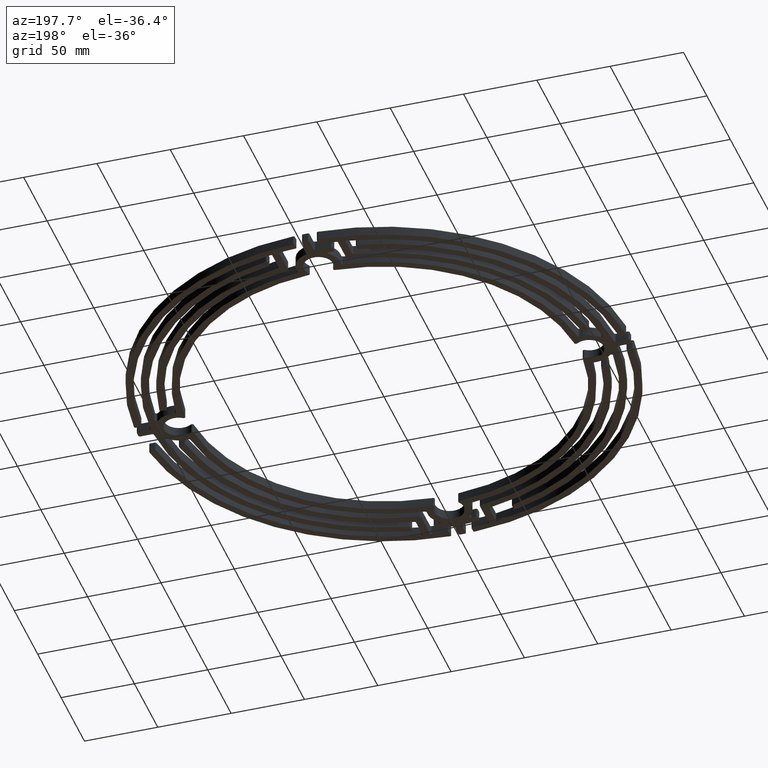
[diagram: clean part render]
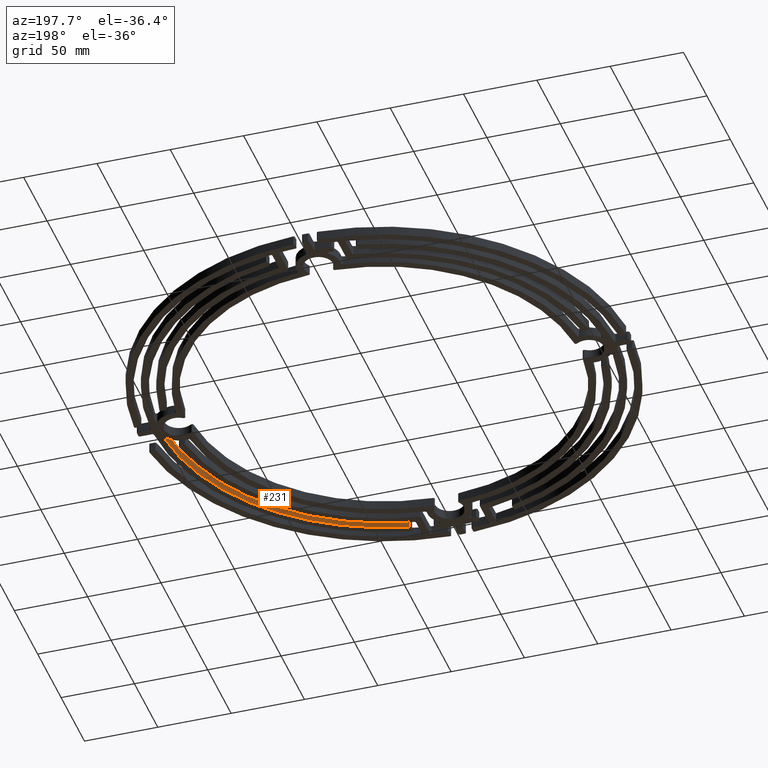
[diagram: same view with one face highlighted and labeled with its STEP entity id]
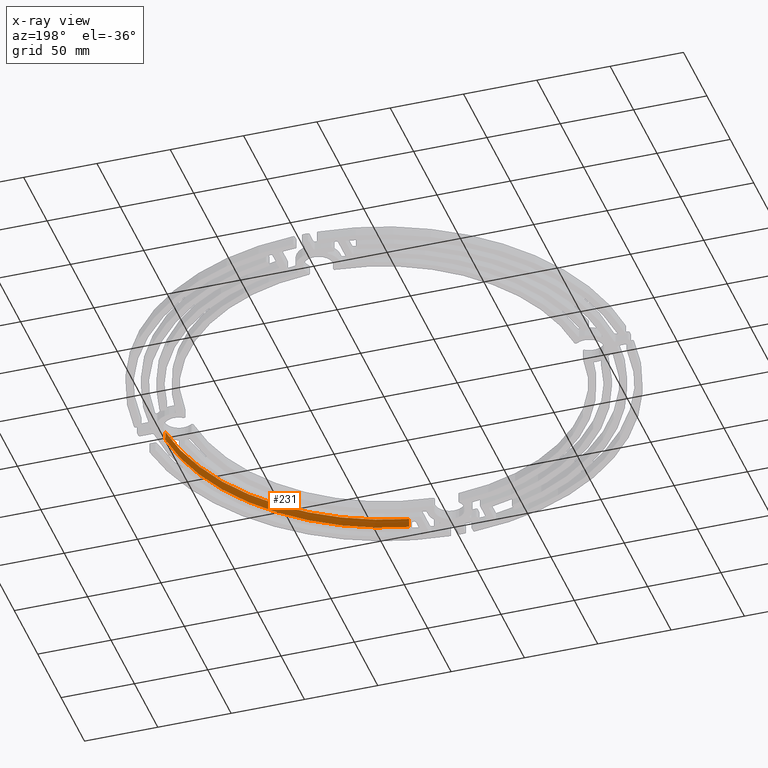
[diagram: x-ray of the same camera — body ghosted, the highlighted face saturated]
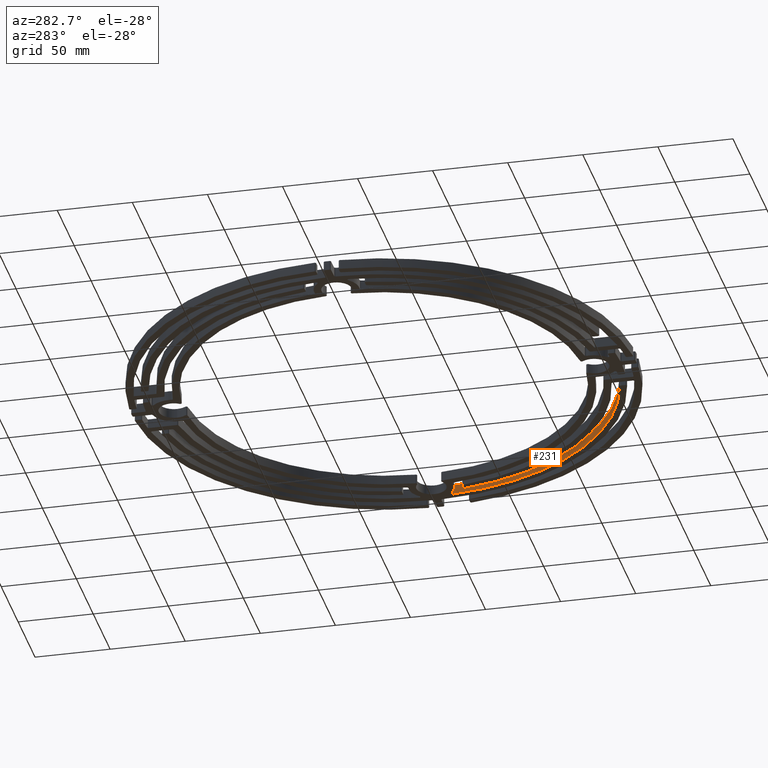
[diagram: same view with one face highlighted and labeled with its STEP entity id]
A machine part, auxiliary view. The second image highlights one B-rep face of the part: STEP entity #231.
The next image is the same camera in x-ray: the body ghosted, the highlighted face saturated — about 0% of this face is hidden behind the body in this view.
A second angle (auxiliary view) of the same face is appended — the face is thin or edge-on in the first view.
In plain terms, the highlighted cylindrical surface (partial cylindrical patch) has radius 153 mm, axis along (-0, -0, -1).
Its self-contained STEP definition (entity closure, byte-faithful):
#231 = ADVANCED_FACE ( 'NONE', ( #3858 ), #3859, .F. ) ;
#537 = EDGE_CURVE ( 'NONE', #3555, #3562, #4334, .T. ) ;
#621 = EDGE_CURVE ( 'NONE', #6821, #3548, #4429, .T. ) ;
#1118 = CARTESIAN_POINT ( 'NONE',  ( 0.0000000000000000000, 0.0000000000000000000, 6.349999999999999600 ) ) ;
#1119 = DIRECTION ( 'NONE',  ( -0.0000000000000000000, -0.0000000000000000000, -1.000000000000000000 ) ) ;
#1120 = DIRECTION ( 'NONE',  ( -1.000000000000000000, 0.0000000000000000000, 0.0000000000000000000 ) ) ;
#1156 = ORIENTED_EDGE ( 'NONE', *, *, #621, .T. ) ;
#1649 = ORIENTED_EDGE ( 'NONE', *, *, #537, .F. ) ;
#1651 = ORIENTED_EDGE ( 'NONE', *, *, #3158, .T. ) ;
#1653 = ORIENTED_EDGE ( 'NONE', *, *, #3169, .T. ) ;
#2132 = CARTESIAN_POINT ( 'NONE',  ( 0.0000000000000000000, 0.0000000000000000000, 6.349999999999999600 ) ) ;
#2133 = DIRECTION ( 'NONE',  ( -0.0000000000000000000, -0.0000000000000000000, -1.000000000000000000 ) ) ;
#2134 = DIRECTION ( 'NONE',  ( 1.000000000000000000, 0.0000000000000000000, 0.0000000000000000000 ) ) ;
#3158 = EDGE_CURVE ( 'NONE', #3548, #3562, #6409, .T. ) ;
#3169 = EDGE_CURVE ( 'NONE', #3555, #6821, #6431, .T. ) ;
#3245 = AXIS2_PLACEMENT_3D ( 'NONE', #1118, #1119, #1120 ) ;
#3400 = AXIS2_PLACEMENT_3D ( 'NONE', #2132, #2133, #2134 ) ;
#3473 = AXIS2_PLACEMENT_3D ( 'NONE', #4818, #4819, #4820 ) ;
#3548 = VERTEX_POINT ( 'NONE', #6524 ) ;
#3555 = VERTEX_POINT ( 'NONE', #6531 ) ;
#3562 = VERTEX_POINT ( 'NONE', #6538 ) ;
#3567 = EDGE_LOOP ( 'NONE', ( #1156, #1651, #1649, #1653 ) ) ;
#3858 = FACE_OUTER_BOUND ( 'NONE', #3567, .T. ) ;
#3859 = CYLINDRICAL_SURFACE ( 'NONE', #3245, 152.9999999999999700 ) ;
#4334 = CIRCLE ( 'NONE', #3400, 152.9999999999999700 ) ;
#4429 = CIRCLE ( 'NONE', #3473, 152.9999999999999700 ) ;
#4818 = CARTESIAN_POINT ( 'NONE',  ( 0.0000000000000000000, 0.0000000000000000000, 0.0000000000000000000 ) ) ;
#4819 = DIRECTION ( 'NONE',  ( -0.0000000000000000000, -0.0000000000000000000, -1.000000000000000000 ) ) ;
#4820 = DIRECTION ( 'NONE',  ( 1.000000000000000000, 0.0000000000000000000, 0.0000000000000000000 ) ) ;
#5806 = CARTESIAN_POINT ( 'NONE',  ( 30.79870129870130300, -149.8680753139686300, 6.349999999999999600 ) ) ;
#5807 = DIRECTION ( 'NONE',  ( 0.0000000000000000000, 0.0000000000000000000, 1.000000000000000000 ) ) ;
#5828 = CARTESIAN_POINT ( 'NONE',  ( 152.5973684210525800, -11.09248173176451500, 6.349999999999999600 ) ) ;
#5829 = DIRECTION ( 'NONE',  ( -0.0000000000000000000, -0.0000000000000000000, -1.000000000000000000 ) ) ;
#6409 = LINE ( 'NONE', #5806, #6410 ) ;
#6410 = VECTOR ( 'NONE', #5807, 1000.000000000000000 ) ;
#6431 = LINE ( 'NONE', #5828, #6432 ) ;
#6432 = VECTOR ( 'NONE', #5829, 1000.000000000000000 ) ;
#6524 = CARTESIAN_POINT ( 'NONE',  ( 30.79870129870130300, -149.8680753139686300, 0.0000000000000000000 ) ) ;
#6531 = CARTESIAN_POINT ( 'NONE',  ( 152.5973684210525800, -11.09248173176451500, 6.349999999999999600 ) ) ;
#6538 = CARTESIAN_POINT ( 'NONE',  ( 30.79870129870130300, -149.8680753139686300, 6.349999999999999600 ) ) ;
#6609 = CARTESIAN_POINT ( 'NONE',  ( 152.5973684210525800, -11.09248173176451500, 0.0000000000000000000 ) ) ;
#6821 = VERTEX_POINT ( 'NONE', #6609 ) ;